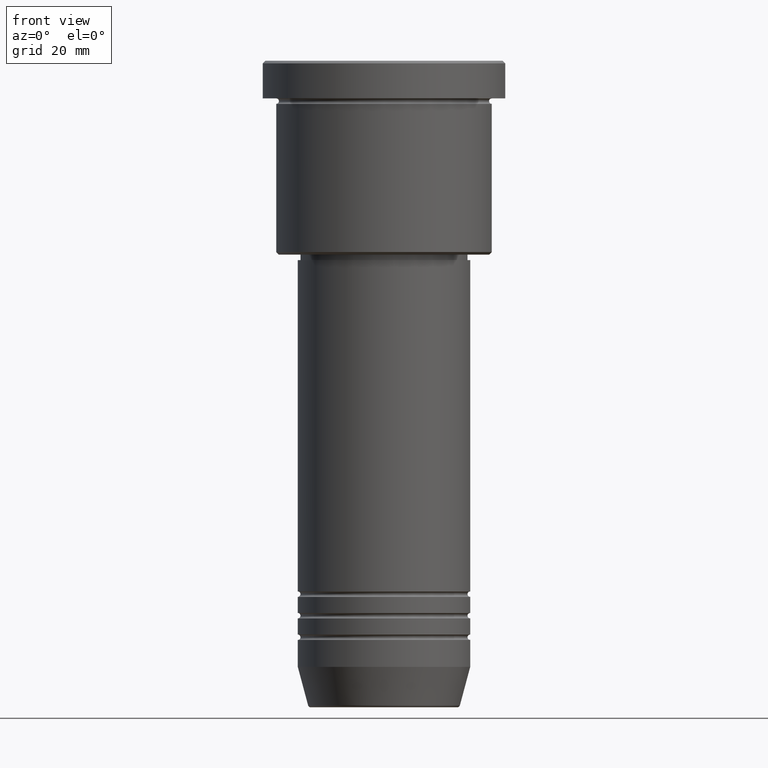
[diagram: clean part render]
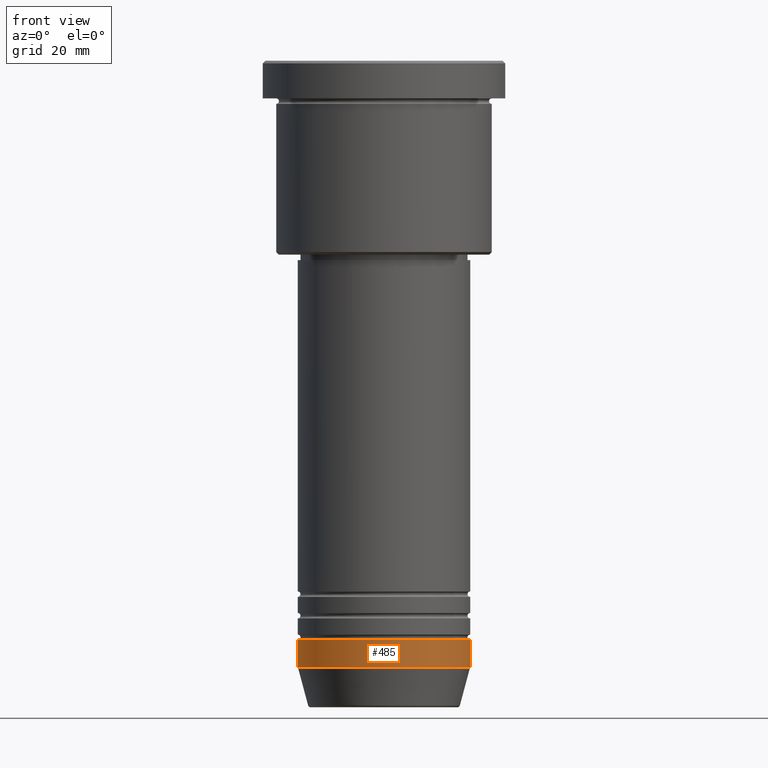
[diagram: same view with one face highlighted and labeled with its STEP entity id]
A machine part, front view. The second image highlights one B-rep face of the part: STEP entity #485.
In plain terms, the highlighted cylindrical surface (partial cylindrical patch) has radius 16 mm, axis along (-0, -0, 1).
Its self-contained STEP definition (entity closure, byte-faithful):
#17 = AXIS2_PLACEMENT_3D ( 'NONE', #953, #850, #960 ) ;
#27 = EDGE_CURVE ( 'NONE', #320, #1086, #323, .T. ) ;
#55 = EDGE_CURVE ( 'NONE', #927, #320, #1038, .T. ) ;
#70 = AXIS2_PLACEMENT_3D ( 'NONE', #703, #1072, #164 ) ;
#103 = ORIENTED_EDGE ( 'NONE', *, *, #279, .F. ) ;
#164 = DIRECTION ( 'NONE',  ( 1.000000000000000000, 0.000000000000000000, 0.000000000000000000 ) ) ;
#174 = EDGE_CURVE ( 'NONE', #927, #555, #832, .T. ) ;
#264 = CARTESIAN_POINT ( 'NONE',  ( -16.00000000000000000, 1.959434878635765131E-15, -112.4999999999999858 ) ) ;
#279 = EDGE_CURVE ( 'NONE', #555, #1086, #1021, .T. ) ;
#286 = CARTESIAN_POINT ( 'NONE',  ( 16.00000000000000000, 0.000000000000000000, -112.4999999999999858 ) ) ;
#320 = VERTEX_POINT ( 'NONE', #286 ) ;
#323 = LINE ( 'NONE', #980, #688 ) ;
#337 = DIRECTION ( 'NONE',  ( -0.000000000000000000, -0.000000000000000000, 1.000000000000000000 ) ) ;
#395 = FACE_OUTER_BOUND ( 'NONE', #852, .T. ) ;
#485 = ADVANCED_FACE ( 'NONE', ( #395 ), #583, .T. ) ;
#501 = VECTOR ( 'NONE', #1135, 1000.000000000000000 ) ;
#555 = VERTEX_POINT ( 'NONE', #1130 ) ;
#558 = AXIS2_PLACEMENT_3D ( 'NONE', #589, #1154, #893 ) ;
#572 = CARTESIAN_POINT ( 'NONE',  ( 16.00000000000000000, 0.000000000000000000, -107.4999999999999858 ) ) ;
#583 = CYLINDRICAL_SURFACE ( 'NONE', #70, 16.00000000000000000 ) ;
#589 = CARTESIAN_POINT ( 'NONE',  ( 0.000000000000000000, 0.000000000000000000, -112.4999999999999858 ) ) ;
#688 = VECTOR ( 'NONE', #337, 1000.000000000000000 ) ;
#703 = CARTESIAN_POINT ( 'NONE',  ( 0.000000000000000000, 0.000000000000000000, 0.000000000000000000 ) ) ;
#758 = CARTESIAN_POINT ( 'NONE',  ( -16.00000000000000000, 1.959434878635765131E-15, 0.000000000000000000 ) ) ;
#832 = LINE ( 'NONE', #758, #501 ) ;
#850 = DIRECTION ( 'NONE',  ( -0.000000000000000000, -0.000000000000000000, 1.000000000000000000 ) ) ;
#852 = EDGE_LOOP ( 'NONE', ( #901, #943, #1075, #103 ) ) ;
#893 = DIRECTION ( 'NONE',  ( 1.000000000000000000, 0.000000000000000000, 0.000000000000000000 ) ) ;
#901 = ORIENTED_EDGE ( 'NONE', *, *, #174, .F. ) ;
#927 = VERTEX_POINT ( 'NONE', #264 ) ;
#943 = ORIENTED_EDGE ( 'NONE', *, *, #55, .T. ) ;
#953 = CARTESIAN_POINT ( 'NONE',  ( 0.000000000000000000, 0.000000000000000000, -107.4999999999999858 ) ) ;
#960 = DIRECTION ( 'NONE',  ( 1.000000000000000000, 0.000000000000000000, 0.000000000000000000 ) ) ;
#980 = CARTESIAN_POINT ( 'NONE',  ( 16.00000000000000000, 0.000000000000000000, 0.000000000000000000 ) ) ;
#1021 = CIRCLE ( 'NONE', #17, 16.00000000000000000 ) ;
#1038 = CIRCLE ( 'NONE', #558, 16.00000000000000000 ) ;
#1072 = DIRECTION ( 'NONE',  ( -0.000000000000000000, -0.000000000000000000, 1.000000000000000000 ) ) ;
#1075 = ORIENTED_EDGE ( 'NONE', *, *, #27, .T. ) ;
#1086 = VERTEX_POINT ( 'NONE', #572 ) ;
#1130 = CARTESIAN_POINT ( 'NONE',  ( -16.00000000000000000, 1.959434878635765131E-15, -107.4999999999999858 ) ) ;
#1135 = DIRECTION ( 'NONE',  ( -0.000000000000000000, -0.000000000000000000, 1.000000000000000000 ) ) ;
#1154 = DIRECTION ( 'NONE',  ( -0.000000000000000000, -0.000000000000000000, 1.000000000000000000 ) ) ;